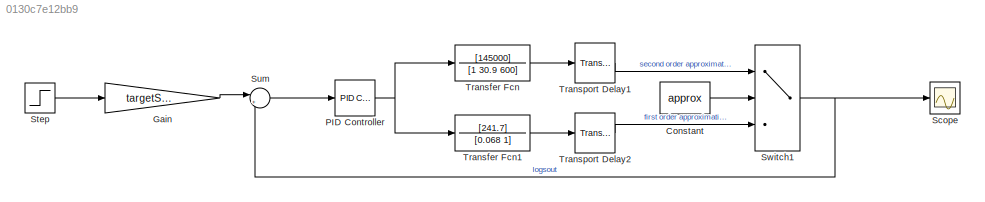
MODEL slx_0130c7e12bb9
KIND model
CONFIG AbsTol = auto
CONFIG EnableMultiTasking = off
CONFIG FixedStep = 0.01
CONFIG MaxStep = auto
CONFIG MinStep = auto
CONFIG RelTol = 1e-3
CONFIG SampleTimeConstraint = Unconstrained
CONFIG SolverName = ode4
CONFIG StartTime = 0.0
CONFIG StopTime = 5
BLOCK [Constant] Constant
  Value = approx
BLOCK [Gain] Gain
  Gain = targetSpeed
BLOCK [Reference] PID Controller  REF=slpidlib/PID Controller
  LibrarySourceBlock = simulink/Continuous/PID Controller
  SourceBlock = slpidlib/PID Controller
  SourceType = PID 1dof
BLOCK [Scope] Scope
  ActiveDisplayYMaximum = 7146.6052301101026
  ActiveDisplayYMinimum = -2809.5608248915159
  Floating = off
  GraphicalSettings = {"Style":{"BackgroundColor":[0.12941176470588237,0.12941176470588237,0.12941176470588237],"AxesColor":[0.07058823529411765,0.07058823529411765,0.07058823529411765],"LabelsColor":[0.8509803921568627,0.8509803921568627,0.8509803921568627],"PreserveColors":false,"Visible":[true],"LineStyle":["-"],"LineWidth":[1.5],"BarWidth":[0.9],"LineColor":["auto"],"LineFaceAlpha":[1],"LineEdgeAlpha":[1],"Marker":...<+2664ch>
  MultipleDisplayCache = [{"MaxYLimMag":2908.3914710789636,"MaxYLimReal":7146.6052301101026,"MinYLimMag":0,"MinYLimReal":-2809.5608248915159,"PlotAsMagnitudePhase":false,"ShowGrid":true,"ShowLegend":false,"Title":"%<SignalLabel>","YLabel":""}]
  NumInputPorts = 1
  ScopeFrameLocation = window
  WasSavedAsWebScope = on
  WindowPosition = [0.000000,36.000000,1536.000000,793.000000,]
BLOCK [Step] Step
  SampleTime = 0
BLOCK [Sum] Sum
  Inputs = |+-
BLOCK [Switch] Switch1
  Criteria = u2 > Threshold
  InputSameDT = off
  SaturateOnIntegerOverflow = off
  Threshold = 1
BLOCK [TransferFcn] Transfer Fcn
  Denominator = [1 30.9 600]
  Numerator = [145000]
BLOCK [TransferFcn] Transfer Fcn1
  Denominator = [0.068 1]
  Numerator = [241.7]
BLOCK [TransportDelay] Transport Delay1
  DelayTime = 0.11
BLOCK [TransportDelay] Transport Delay2
  DelayTime = 0.115
LINE Constant:1 -> Switch1:2
LINE Gain:1 -> Sum:1
NET PID Controller:1 -> Transfer Fcn1:1, Transfer Fcn:1
LINE Step:1 -> Gain:1
LINE Sum:1 -> PID Controller:1
NET Switch1:1 -> Scope:1, Sum:2
LINE Transfer Fcn1:1 -> Transport Delay2:1
LINE Transfer Fcn:1 -> Transport Delay1:1
LINE Transport Delay1:1 -> Switch1:1
LINE Transport Delay2:1 -> Switch1:3
note: NET lines group one-source signal fan-out (src -> all destinations, sorted); 1:1 wires keep LINE
